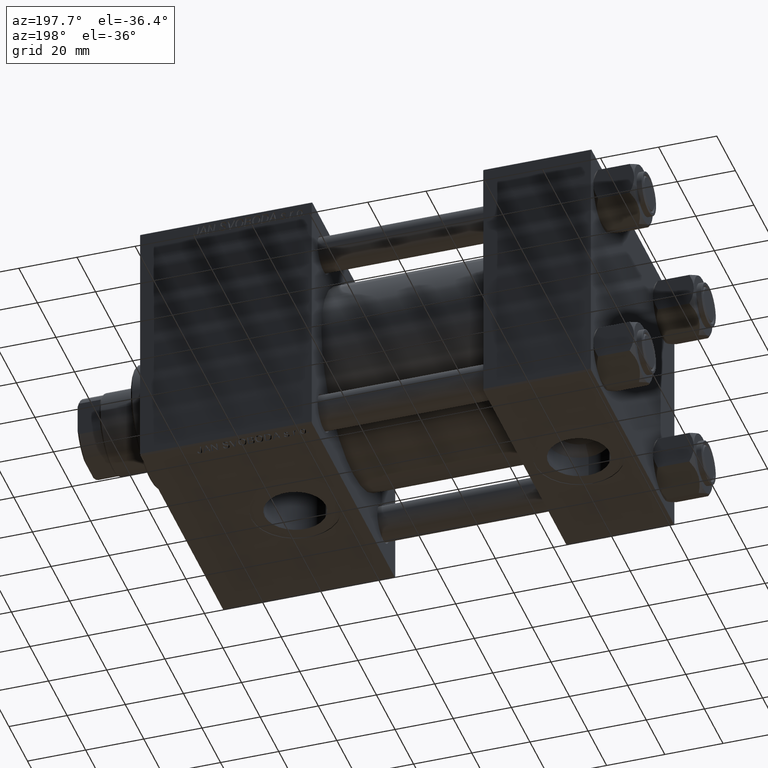
[diagram: clean part render]
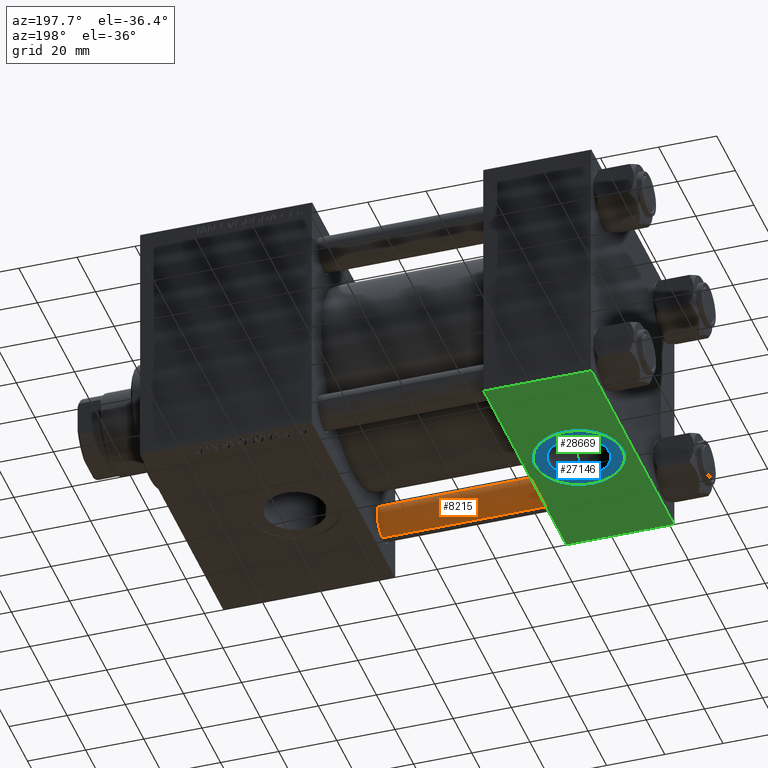
[diagram: same view with three faces highlighted in distinct colors, each labeled with its STEP entity id]
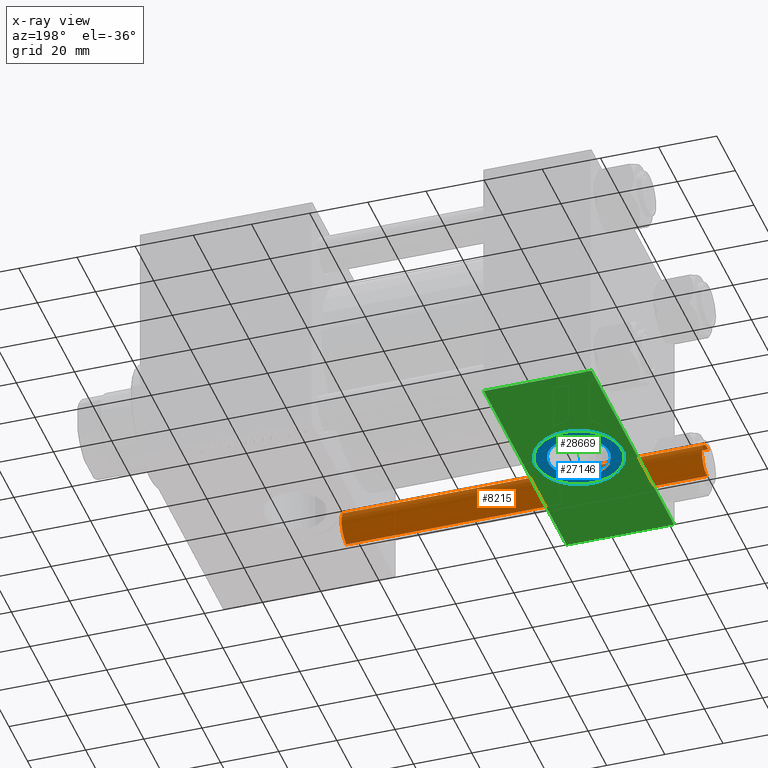
[diagram: x-ray of the same camera — body ghosted, the three highlighted faces saturated]
A machine part, auxiliary view with three faces highlighted in distinct colors.
The next image is the same camera in x-ray (body ghosted, the three faces saturated) — at least one of them is partly hidden behind the body in this view.
Their STEP definitions:

[orange] entity #8215 — the highlighted cylindrical surface (edge-blend (fillet) strip) has radius 6 mm, axis along (-1, -0, -0).
#6 = EDGE_CURVE ( 'NONE', #1255, #44784, #47639, .T. ) ;
#1255 = VERTEX_POINT ( 'NONE', #15558 ) ;
#1546 = ORIENTED_EDGE ( 'NONE', *, *, #38978, .T. ) ;
#5438 = DIRECTION ( 'NONE',  ( -1.000000000000000000, 0.000000000000000000, 0.000000000000000000 ) ) ;
#5659 = LINE ( 'NONE', #40435, #35106 ) ;
#6417 = CARTESIAN_POINT ( 'NONE',  ( 0.000000000000000000, 0.000000000000000000, 125.0000000000000000 ) ) ;
#8215 = ADVANCED_FACE ( 'NONE', ( #17602 ), #10236, .T. ) ;
#8931 = AXIS2_PLACEMENT_3D ( 'NONE', #6417, #48837, #5438 ) ;
#9657 = VERTEX_POINT ( 'NONE', #20677 ) ;
#10236 = CYLINDRICAL_SURFACE ( 'NONE', #8931, 6.000000000000000888 ) ;
#11948 = VERTEX_POINT ( 'NONE', #25200 ) ;
#13026 = DIRECTION ( 'NONE',  ( 1.000000000000000000, 0.000000000000000000, 0.000000000000000000 ) ) ;
#13170 = CARTESIAN_POINT ( 'NONE',  ( -6.000000000000000888, 0.000000000000000000, 125.0000000000000000 ) ) ;
#13284 = DIRECTION ( 'NONE',  ( -0.000000000000000000, -0.000000000000000000, -1.000000000000000000 ) ) ;
#15558 = CARTESIAN_POINT ( 'NONE',  ( -6.000000000000000888, 0.000000000000000000, 0.4999999999999865663 ) ) ;
#16496 = ORIENTED_EDGE ( 'NONE', *, *, #36411, .T. ) ;
#16826 = DIRECTION ( 'NONE',  ( 0.000000000000000000, 0.000000000000000000, -1.000000000000000000 ) ) ;
#17602 = FACE_OUTER_BOUND ( 'NONE', #32790, .T. ) ;
#20677 = CARTESIAN_POINT ( 'NONE',  ( 6.000000000000000888, 7.347880794884120722E-16, 124.5000000000000000 ) ) ;
#25200 = CARTESIAN_POINT ( 'NONE',  ( -6.000000000000000888, 0.000000000000000000, 124.5000000000000000 ) ) ;
#25727 = AXIS2_PLACEMENT_3D ( 'NONE', #42082, #30420, #26605 ) ;
#26605 = DIRECTION ( 'NONE',  ( 1.000000000000000000, 0.000000000000000000, 0.000000000000000000 ) ) ;
#29470 = ORIENTED_EDGE ( 'NONE', *, *, #45758, .F. ) ;
#30420 = DIRECTION ( 'NONE',  ( -0.000000000000000000, -0.000000000000000000, 1.000000000000000000 ) ) ;
#32790 = EDGE_LOOP ( 'NONE', ( #29470, #1546, #16496, #45995 ) ) ;
#32956 = DIRECTION ( 'NONE',  ( -0.000000000000000000, -0.000000000000000000, -1.000000000000000000 ) ) ;
#35106 = VECTOR ( 'NONE', #13284, 1000.000000000000000 ) ;
#36411 = EDGE_CURVE ( 'NONE', #11948, #1255, #40808, .T. ) ;
#36618 = CARTESIAN_POINT ( 'NONE',  ( 0.000000000000000000, 0.000000000000000000, 124.5000000000000000 ) ) ;
#38161 = CARTESIAN_POINT ( 'NONE',  ( 6.000000000000000888, 7.347880794884120722E-16, 0.4999999999999865663 ) ) ;
#38978 = EDGE_CURVE ( 'NONE', #9657, #11948, #44727, .T. ) ;
#40435 = CARTESIAN_POINT ( 'NONE',  ( 6.000000000000000888, 7.347880794884120722E-16, 125.0000000000000000 ) ) ;
#40808 = LINE ( 'NONE', #13170, #47935 ) ;
#42082 = CARTESIAN_POINT ( 'NONE',  ( 0.000000000000000000, 0.000000000000000000, 0.4999999999999865663 ) ) ;
#43949 = AXIS2_PLACEMENT_3D ( 'NONE', #36618, #16826, #13026 ) ;
#44727 = CIRCLE ( 'NONE', #43949, 6.000000000000000888 ) ;
#44784 = VERTEX_POINT ( 'NONE', #38161 ) ;
#45758 = EDGE_CURVE ( 'NONE', #9657, #44784, #5659, .T. ) ;
#45995 = ORIENTED_EDGE ( 'NONE', *, *, #6, .T. ) ;
#47639 = CIRCLE ( 'NONE', #25727, 6.000000000000000888 ) ;
#47935 = VECTOR ( 'NONE', #32956, 1000.000000000000000 ) ;
#48837 = DIRECTION ( 'NONE',  ( -0.000000000000000000, -0.000000000000000000, -1.000000000000000000 ) ) ;

[blue] entity #27146 — the highlighted planar face has unit normal (0, -0, -1).
#145 = CARTESIAN_POINT ( 'NONE',  ( 18.50000000000000355, 4.034436055473119386E-15, -44.79999999999999005 ) ) ;
#2227 = AXIS2_PLACEMENT_3D ( 'NONE', #33118, #29321, #37167 ) ;
#2449 = EDGE_CURVE ( 'NONE', #45785, #10706, #37948, .T. ) ;
#2752 = CARTESIAN_POINT ( 'NONE',  ( 18.50000000000000355, 15.00000000000000355, -44.79999999999999005 ) ) ;
#4557 = PLANE ( 'NONE',  #34562 ) ;
#5309 = DIRECTION ( 'NONE',  ( 0.000000000000000000, 1.000000000000000000, -1.734723475976806848E-16 ) ) ;
#6286 = CIRCLE ( 'NONE', #2227, 15.00000000000000000 ) ;
#7039 = EDGE_CURVE ( 'NONE', #40728, #48096, #35788, .T. ) ;
#7483 = DIRECTION ( 'NONE',  ( 0.000000000000000000, 1.000000000000000000, 0.000000000000000000 ) ) ;
#7563 = DIRECTION ( 'NONE',  ( 0.000000000000000000, -1.734723475976806848E-16, -1.000000000000000000 ) ) ;
#9128 = CARTESIAN_POINT ( 'NONE',  ( 18.50000000000000355, 4.034436055473120175E-15, -44.79999999999999005 ) ) ;
#9619 = FACE_BOUND ( 'NONE', #37410, .T. ) ;
#10706 = VERTEX_POINT ( 'NONE', #49656 ) ;
#10867 = AXIS2_PLACEMENT_3D ( 'NONE', #145, #41776, #23494 ) ;
#15095 = CARTESIAN_POINT ( 'NONE',  ( 18.50000000000000355, 4.034436055473120175E-15, -44.79999999999999005 ) ) ;
#19739 = CARTESIAN_POINT ( 'NONE',  ( 18.50000000000000355, 4.034436055473119386E-15, -44.79999999999999005 ) ) ;
#23494 = DIRECTION ( 'NONE',  ( 0.000000000000000000, 1.000000000000000000, 0.000000000000000000 ) ) ;
#25104 = FACE_OUTER_BOUND ( 'NONE', #49293, .T. ) ;
#26611 = DIRECTION ( 'NONE',  ( 0.000000000000000000, 1.000000000000000000, 0.000000000000000000 ) ) ;
#27050 = ORIENTED_EDGE ( 'NONE', *, *, #2449, .F. ) ;
#27146 = ADVANCED_FACE ( 'NONE', ( #9619, #25104 ), #4557, .T. ) ;
#29321 = DIRECTION ( 'NONE',  ( 0.000000000000000000, -1.734723475976806848E-16, -1.000000000000000000 ) ) ;
#30423 = EDGE_CURVE ( 'NONE', #48096, #40728, #6286, .T. ) ;
#30600 = DIRECTION ( 'NONE',  ( 0.000000000000000000, -1.734723475976806848E-16, -1.000000000000000000 ) ) ;
#30934 = AXIS2_PLACEMENT_3D ( 'NONE', #15095, #30600, #7483 ) ;
#31345 = CARTESIAN_POINT ( 'NONE',  ( 18.50000000000000711, -14.99999999999999645, -44.79999999999999005 ) ) ;
#33118 = CARTESIAN_POINT ( 'NONE',  ( 18.50000000000000355, 4.034436055473120175E-15, -44.79999999999999005 ) ) ;
#34562 = AXIS2_PLACEMENT_3D ( 'NONE', #9128, #40083, #5309 ) ;
#35788 = CIRCLE ( 'NONE', #30934, 15.00000000000000000 ) ;
#36738 = ORIENTED_EDGE ( 'NONE', *, *, #7039, .T. ) ;
#37004 = ORIENTED_EDGE ( 'NONE', *, *, #47269, .F. ) ;
#37167 = DIRECTION ( 'NONE',  ( 0.000000000000000000, 1.000000000000000000, 0.000000000000000000 ) ) ;
#37410 = EDGE_LOOP ( 'NONE', ( #27050, #37004 ) ) ;
#37948 = CIRCLE ( 'NONE', #50126, 10.48000000000000043 ) ;
#39438 = CARTESIAN_POINT ( 'NONE',  ( 18.50000000000000355, 10.48000000000000398, -44.79999999999999005 ) ) ;
#40083 = DIRECTION ( 'NONE',  ( 0.000000000000000000, -1.734723475976806848E-16, -1.000000000000000000 ) ) ;
#40728 = VERTEX_POINT ( 'NONE', #31345 ) ;
#41776 = DIRECTION ( 'NONE',  ( 0.000000000000000000, -1.734723475976806848E-16, -1.000000000000000000 ) ) ;
#45785 = VERTEX_POINT ( 'NONE', #39438 ) ;
#47269 = EDGE_CURVE ( 'NONE', #10706, #45785, #48173, .T. ) ;
#48096 = VERTEX_POINT ( 'NONE', #2752 ) ;
#48173 = CIRCLE ( 'NONE', #10867, 10.48000000000000043 ) ;
#49293 = EDGE_LOOP ( 'NONE', ( #49736, #36738 ) ) ;
#49656 = CARTESIAN_POINT ( 'NONE',  ( 18.50000000000000355, -10.47999999999999687, -44.79999999999999005 ) ) ;
#49736 = ORIENTED_EDGE ( 'NONE', *, *, #30423, .T. ) ;
#50126 = AXIS2_PLACEMENT_3D ( 'NONE', #19739, #7563, #26611 ) ;

[green] entity #28669 — the highlighted planar face has unit normal (0, 0, -1).
#545 = CARTESIAN_POINT ( 'NONE',  ( 0.000000000000000000, -44.49999999999998579, -45.00000000000000000 ) ) ;
#1728 = CARTESIAN_POINT ( 'NONE',  ( 18.50000000000000355, 3.999741585953584033E-15, -44.99999999999999289 ) ) ;
#2502 = FACE_OUTER_BOUND ( 'NONE', #31546, .T. ) ;
#2758 = LINE ( 'NONE', #18254, #33576 ) ;
#2931 = VERTEX_POINT ( 'NONE', #47996 ) ;
#4151 = VERTEX_POINT ( 'NONE', #42179 ) ;
#6288 = VERTEX_POINT ( 'NONE', #14202 ) ;
#6315 = CARTESIAN_POINT ( 'NONE',  ( 37.00000000000000000, 44.99999999999998579, -44.99999999999998579 ) ) ;
#9121 = CARTESIAN_POINT ( 'NONE',  ( 37.00000000000000000, 44.99999999999998579, -44.99999999999998579 ) ) ;
#9737 = DIRECTION ( 'NONE',  ( 0.000000000000000000, -1.734723475976806848E-16, -1.000000000000000000 ) ) ;
#10538 = VERTEX_POINT ( 'NONE', #35980 ) ;
#11539 = ORIENTED_EDGE ( 'NONE', *, *, #21891, .F. ) ;
#14109 = CARTESIAN_POINT ( 'NONE',  ( 37.00000000000000000, -44.49999999999995737, -45.00000000000000000 ) ) ;
#14202 = CARTESIAN_POINT ( 'NONE',  ( 18.50000000000000711, -14.99999999999999645, -44.99999999999999289 ) ) ;
#14293 = CIRCLE ( 'NONE', #42691, 15.00000000000000000 ) ;
#17983 = PLANE ( 'NONE',  #41068 ) ;
#18236 = DIRECTION ( 'NONE',  ( 0.000000000000000000, 1.541976423090495880E-16, -1.000000000000000000 ) ) ;
#18254 = CARTESIAN_POINT ( 'NONE',  ( 37.00000000000000000, 44.49999999999998579, -44.99999999999998579 ) ) ;
#18426 = DIRECTION ( 'NONE',  ( 0.000000000000000000, -1.000000000000000000, -1.541976423090495633E-16 ) ) ;
#18659 = EDGE_CURVE ( 'NONE', #30165, #10538, #2758, .T. ) ;
#19578 = LINE ( 'NONE', #545, #49621 ) ;
#19719 = ORIENTED_EDGE ( 'NONE', *, *, #18659, .T. ) ;
#21841 = VERTEX_POINT ( 'NONE', #14109 ) ;
#21891 = EDGE_CURVE ( 'NONE', #30165, #4151, #49660, .T. ) ;
#23632 = EDGE_CURVE ( 'NONE', #6288, #2931, #43390, .T. ) ;
#23697 = EDGE_CURVE ( 'NONE', #10538, #21841, #28413, .T. ) ;
#24609 = DIRECTION ( 'NONE',  ( 0.000000000000000000, -1.000000000000000000, -1.541976423090495633E-16 ) ) ;
#25130 = FACE_BOUND ( 'NONE', #31478, .T. ) ;
#25557 = CARTESIAN_POINT ( 'NONE',  ( 0.000000000000000000, 44.99999999999998579, -44.99999999999998579 ) ) ;
#26956 = EDGE_CURVE ( 'NONE', #2931, #6288, #14293, .T. ) ;
#27076 = VECTOR ( 'NONE', #18426, 1000.000000000000000 ) ;
#27856 = ORIENTED_EDGE ( 'NONE', *, *, #23697, .T. ) ;
#28413 = LINE ( 'NONE', #9121, #42545 ) ;
#28542 = CARTESIAN_POINT ( 'NONE',  ( 18.50000000000000355, 3.999741585953584033E-15, -44.99999999999999289 ) ) ;
#28669 = ADVANCED_FACE ( 'NONE', ( #25130, #2502 ), #17983, .T. ) ;
#30165 = VERTEX_POINT ( 'NONE', #34164 ) ;
#31478 = EDGE_LOOP ( 'NONE', ( #43624, #46969 ) ) ;
#31546 = EDGE_LOOP ( 'NONE', ( #11539, #19719, #27856, #44026 ) ) ;
#33576 = VECTOR ( 'NONE', #33734, 1000.000000000000000 ) ;
#33734 = DIRECTION ( 'NONE',  ( 1.000000000000000000, 0.000000000000000000, 0.000000000000000000 ) ) ;
#34164 = CARTESIAN_POINT ( 'NONE',  ( 0.000000000000000000, 44.49999999999998579, -44.99999999999998579 ) ) ;
#35980 = CARTESIAN_POINT ( 'NONE',  ( 37.00000000000000000, 44.49999999999998579, -44.99999999999998579 ) ) ;
#39116 = EDGE_CURVE ( 'NONE', #21841, #4151, #19578, .T. ) ;
#40119 = AXIS2_PLACEMENT_3D ( 'NONE', #1728, #43654, #47720 ) ;
#40592 = DIRECTION ( 'NONE',  ( 0.000000000000000000, 1.000000000000000000, 1.541976423090495880E-16 ) ) ;
#41068 = AXIS2_PLACEMENT_3D ( 'NONE', #6315, #18236, #40592 ) ;
#42179 = CARTESIAN_POINT ( 'NONE',  ( 0.000000000000000000, -44.49999999999995737, -45.00000000000000000 ) ) ;
#42545 = VECTOR ( 'NONE', #24609, 1000.000000000000000 ) ;
#42691 = AXIS2_PLACEMENT_3D ( 'NONE', #28542, #9737, #44023 ) ;
#43390 = CIRCLE ( 'NONE', #40119, 15.00000000000000000 ) ;
#43624 = ORIENTED_EDGE ( 'NONE', *, *, #26956, .F. ) ;
#43654 = DIRECTION ( 'NONE',  ( 0.000000000000000000, -1.734723475976806848E-16, -1.000000000000000000 ) ) ;
#44023 = DIRECTION ( 'NONE',  ( 0.000000000000000000, 1.000000000000000000, 0.000000000000000000 ) ) ;
#44026 = ORIENTED_EDGE ( 'NONE', *, *, #39116, .T. ) ;
#46250 = DIRECTION ( 'NONE',  ( -1.000000000000000000, 0.000000000000000000, 0.000000000000000000 ) ) ;
#46969 = ORIENTED_EDGE ( 'NONE', *, *, #23632, .F. ) ;
#47720 = DIRECTION ( 'NONE',  ( 0.000000000000000000, 1.000000000000000000, 0.000000000000000000 ) ) ;
#47996 = CARTESIAN_POINT ( 'NONE',  ( 18.50000000000000355, 15.00000000000000355, -44.99999999999999289 ) ) ;
#49621 = VECTOR ( 'NONE', #46250, 1000.000000000000000 ) ;
#49660 = LINE ( 'NONE', #25557, #27076 ) ;